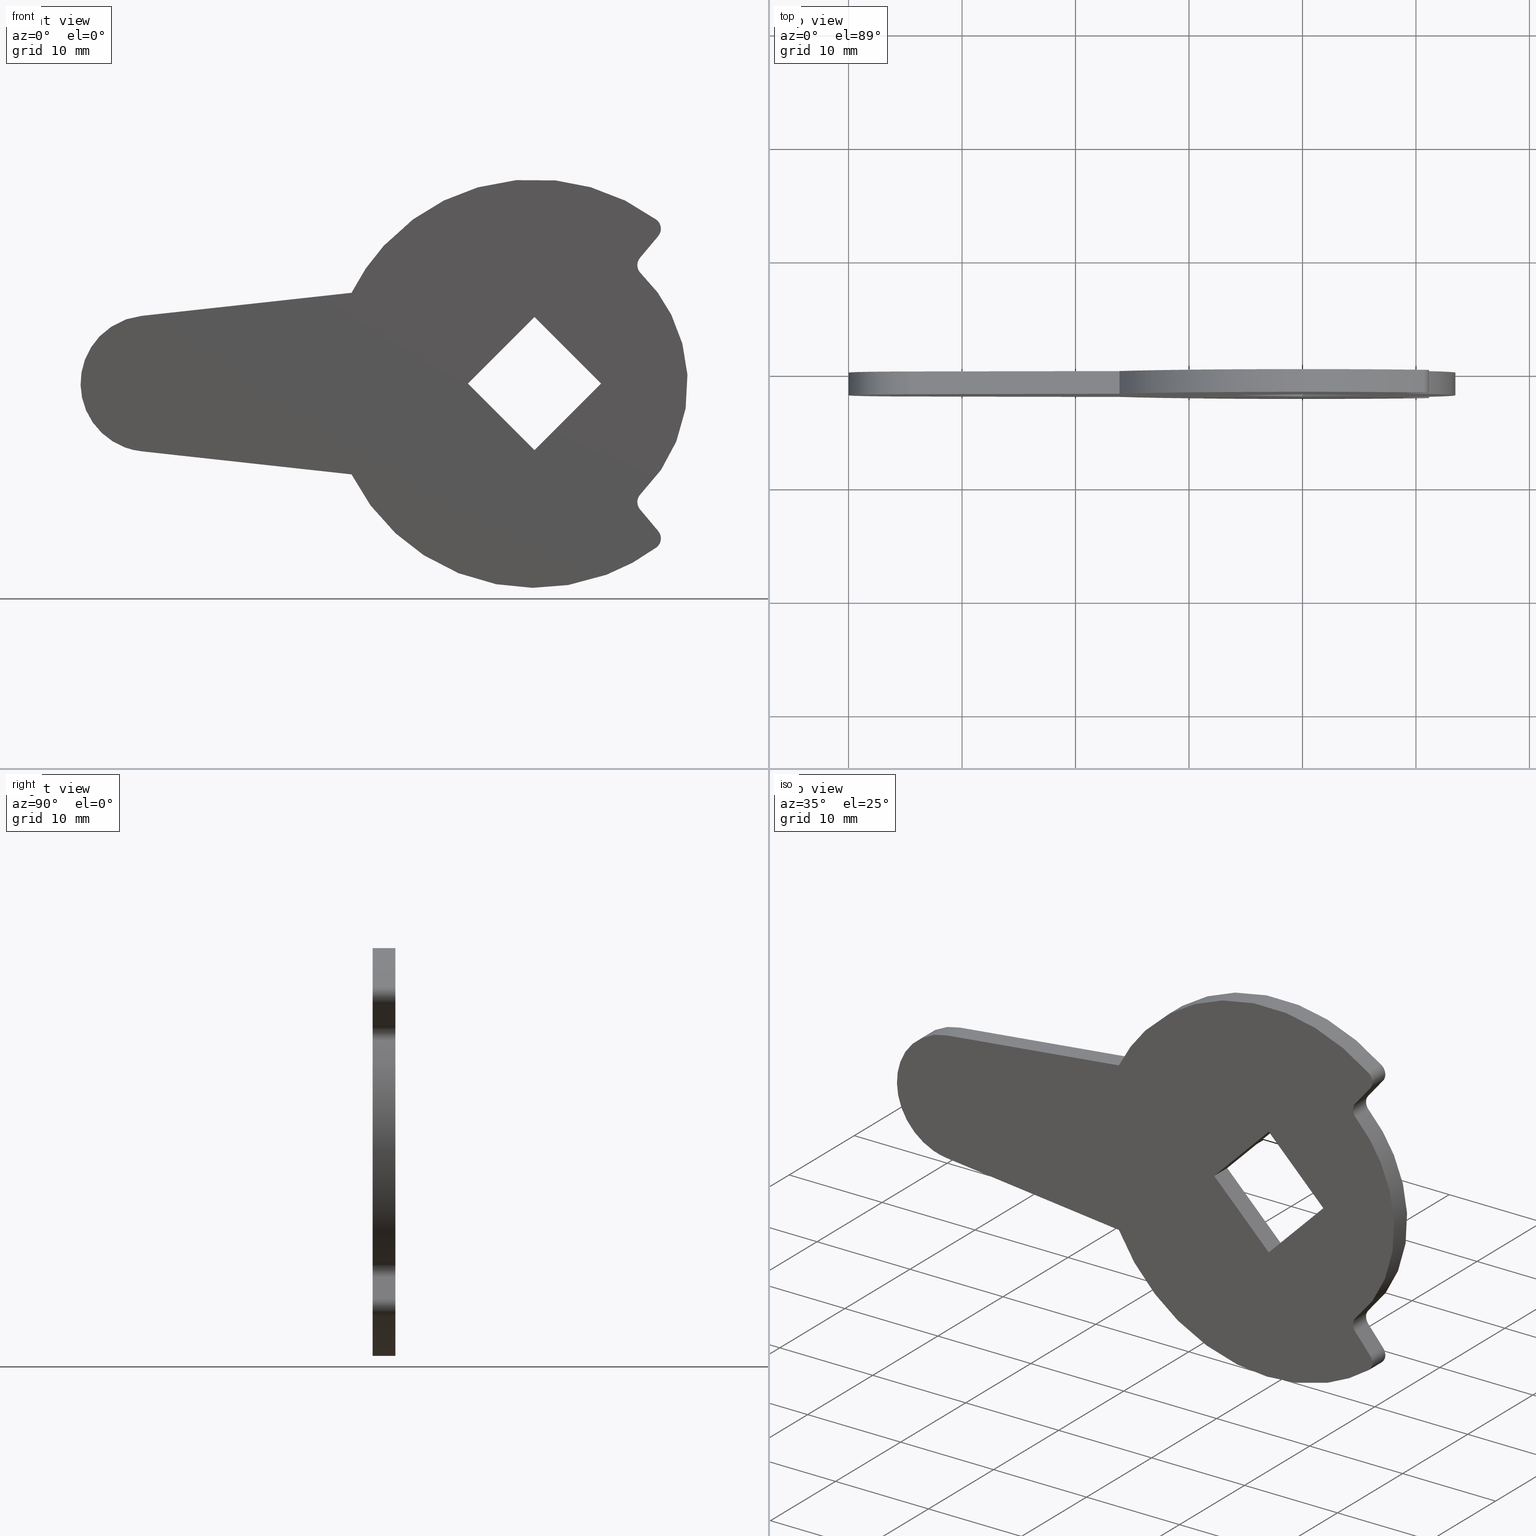
[diagram: canonical four-view strip — front | top / right | iso, engineering-drawing reading convention]
A machine part, canonical four-view strip (front | top / right | iso — engineering-drawing reading convention). The complete STEP part file that produces these views, byte-faithful:
ISO-10303-21;
HEADER;
/****************************************************************
 * Generated by software with PDE/Lib inside                    *
 * PDElib Version 4.4.1-0003, patched  Thursday August 19 11:58 *
 * International Technegroup Inc. (www.iti-oh.com)              *
 ****************************************************************/
FILE_DESCRIPTION((''),'2;1');
FILE_NAME('','2005-10-12T14:37:41',(''),(''),'','CADfix','');
FILE_SCHEMA(('AUTOMOTIVE_DESIGN'));
ENDSEC;
DATA;
#5=APPLICATION_CONTEXT('automotive design');
#6=APPLICATION_PROTOCOL_DEFINITION('Draft International Standard','automotive_design',1998,#5);
#7=PRODUCT_CONTEXT('None',#5,'mechanical');
#8=PRODUCT('cam','','None',(#7));
#9=PRODUCT_RELATED_PRODUCT_CATEGORY('part','description',(#8));
#10=PRODUCT_DEFINITION_FORMATION('None','None',#8);
#11=PRODUCT_DEFINITION_CONTEXT('part definition',#5,'design');
#12=PRODUCT_DEFINITION('None','None',#10,#11);
#18=(NAMED_UNIT(*)PLANE_ANGLE_UNIT()SI_UNIT($,.RADIAN.));
#19=DIMENSIONAL_EXPONENTS(0.0,0.0,0.0,0.0,0.0,0.0,0.0);
#20=PLANE_ANGLE_MEASURE_WITH_UNIT(PLANE_ANGLE_MEASURE(0.017453292500000),#18);
#24=(CONVERSION_BASED_UNIT('DEGREE',#20)NAMED_UNIT(#19)PLANE_ANGLE_UNIT());
#28=(NAMED_UNIT(*)SI_UNIT($,.STERADIAN.)SOLID_ANGLE_UNIT());
#32=(LENGTH_UNIT()NAMED_UNIT(*)SI_UNIT(.MILLI.,.METRE.));
#34=UNCERTAINTY_MEASURE_WITH_UNIT(LENGTH_MEASURE(0.001000000000000),#32,'DISTANCE_ACCURACY_VALUE','');
#36=(GEOMETRIC_REPRESENTATION_CONTEXT(3)GLOBAL_UNCERTAINTY_ASSIGNED_CONTEXT((#34))GLOBAL_UNIT_ASSIGNED_CONTEXT((#24,#28,#32))REPRESENTATION_CONTEXT('None','None'));
#37=AXIS2_PLACEMENT_3D('',#38,#39,#40);
#38=CARTESIAN_POINT('',(0.0,0.0,0.0));
#39=DIRECTION('',(0.0,0.0,1.0));
#40=DIRECTION('',(1.0,0.0,0.0));
#41=ADVANCED_BREP_SHAPE_REPRESENTATION('',(#37,#773),#36);
#42=PRODUCT_DEFINITION_SHAPE('','',#12);
#43=SHAPE_DEFINITION_REPRESENTATION(#42,#41);
#44=CARTESIAN_POINT('',(-42.672116572253323,0.0,19.798160962117120));
#45=CARTESIAN_POINT('',(16.172309228567340,0.0,19.798160962117120));
#46=CARTESIAN_POINT('',(-42.672116572253323,0.0,-19.798180562017890));
#47=CARTESIAN_POINT('',(16.172309228567340,0.0,-19.798180562017890));
#48=B_SPLINE_SURFACE_WITH_KNOTS('',1,1,((#44,#46),(#45,#47)),.UNSPECIFIED.,.F.,.F.,.U.,(2,2),(2,2),(0.0,58.844425800820659),(0.0,39.596341524135013),.UNSPECIFIED.);
#49=CARTESIAN_POINT('',(10.739072857427660,0.0,14.445526761286960));
#50=VERTEX_POINT('',#49);
#51=CARTESIAN_POINT('',(-16.124516390019298,0.0,7.999998199249760));
#52=VERTEX_POINT('',#51);
#53=CARTESIAN_POINT('',(10.739072857427670,0.0,14.445526761286979));
#54=CARTESIAN_POINT('',(3.984586888391954,0.0,19.466919151968000));
#55=CARTESIAN_POINT('',(-4.199630048120304,0.0,17.503235016676509));
#56=CARTESIAN_POINT('',(-12.383846984632562,0.0,15.539550881385031));
#57=CARTESIAN_POINT('',(-16.124516390019298,0.0,7.999998199249757));
#65=(BOUNDED_CURVE()B_SPLINE_CURVE(2,(#53,#54,#55,#56,#57),.UNSPECIFIED.,.F.,.U.)B_SPLINE_CURVE_WITH_KNOTS((3,2,3),(0.0,0.500000000000000,1.0),.UNSPECIFIED.)CURVE()GEOMETRIC_REPRESENTATION_ITEM()RATIONAL_B_SPLINE_CURVE((1.0,0.905864952288434,1.0,0.905864952288434,1.0))REPRESENTATION_ITEM(''));
#66=EDGE_CURVE('',#50,#52,#65,.T.);
#67=ORIENTED_EDGE('',*,*,#66,.F.);
#68=CARTESIAN_POINT('',(10.903888410533700,0.0,12.994704011808579));
#69=VERTEX_POINT('',#68);
#70=CARTESIAN_POINT('',(10.903888410533691,0.0,12.994704011808590));
#71=CARTESIAN_POINT('',(11.185033449869259,0.0,13.324930315200996));
#72=CARTESIAN_POINT('',(11.136079863433119,0.0,13.755854311945500));
#73=CARTESIAN_POINT('',(11.087126276996973,0.0,14.186778308690002));
#74=CARTESIAN_POINT('',(10.739072857427660,0.0,14.445526761286960));
#82=(BOUNDED_CURVE()B_SPLINE_CURVE(2,(#70,#71,#72,#73,#74),.UNSPECIFIED.,.F.,.U.)B_SPLINE_CURVE_WITH_KNOTS((3,2,3),(0.0,0.500000000000000,1.0),.UNSPECIFIED.)CURVE()GEOMETRIC_REPRESENTATION_ITEM()RATIONAL_B_SPLINE_CURVE((1.0,0.917438250668628,1.0,0.917438250668628,1.0))REPRESENTATION_ITEM(''));
#83=EDGE_CURVE('',#69,#50,#82,.T.);
#84=ORIENTED_EDGE('',*,*,#83,.F.);
#85=CARTESIAN_POINT('',(9.302911589465209,0.0,11.086695988190041));
#86=VERTEX_POINT('',#85);
#87=CARTESIAN_POINT('',(9.302911589465209,0.0,11.086695988190041));
#88=CARTESIAN_POINT('',(10.903888410533700,0.0,12.994704011808579));
#89=QUASI_UNIFORM_CURVE('',1,(#87,#88),.UNSPECIFIED.,.F.,.U.);
#90=EDGE_CURVE('',#86,#69,#89,.T.);
#91=ORIENTED_EDGE('',*,*,#90,.F.);
#92=CARTESIAN_POINT('',(9.370201414459581,0.0,9.718512161401019));
#93=VERTEX_POINT('',#92);
#94=CARTESIAN_POINT('',(9.302911589465223,0.0,11.086695988190030));
#95=CARTESIAN_POINT('',(8.693486324254092,0.0,10.370976687546957));
#96=CARTESIAN_POINT('',(9.370201414459581,0.0,9.718512161401019));
#104=(BOUNDED_CURVE()B_SPLINE_CURVE(2,(#94,#95,#96),.UNSPECIFIED.,.F.,.U.)CURVE()GEOMETRIC_REPRESENTATION_ITEM()QUASI_UNIFORM_CURVE()RATIONAL_B_SPLINE_CURVE((1.0,0.728615029616869,1.0))REPRESENTATION_ITEM(''));
#105=EDGE_CURVE('',#86,#93,#104,.T.);
#106=ORIENTED_EDGE('',*,*,#105,.T.);
#107=CARTESIAN_POINT('',(9.370232998813620,0.0,-9.718481708829620));
#108=VERTEX_POINT('',#107);
#109=CARTESIAN_POINT('',(9.370232998813620,0.0,-9.718481708829620));
#110=CARTESIAN_POINT('',(13.500002456554789,0.0,-5.736679563119537));
#111=CARTESIAN_POINT('',(13.499993134639389,0.0,0.000021937009817));
#112=CARTESIAN_POINT('',(13.499983812723983,0.0,5.736723437139174));
#113=CARTESIAN_POINT('',(9.370201414459583,0.0,9.718512161401019));
#121=(BOUNDED_CURVE()B_SPLINE_CURVE(2,(#109,#110,#111,#112,#113),.UNSPECIFIED.,.F.,.U.)B_SPLINE_CURVE_WITH_KNOTS((3,2,3),(0.0,0.500000000000000,1.0),.UNSPECIFIED.)CURVE()GEOMETRIC_REPRESENTATION_ITEM()RATIONAL_B_SPLINE_CURVE((1.0,0.920350869292249,1.0,0.920350869292249,1.0))REPRESENTATION_ITEM(''));
#122=EDGE_CURVE('',#108,#93,#121,.T.);
#123=ORIENTED_EDGE('',*,*,#122,.F.);
#124=CARTESIAN_POINT('',(9.302911589452830,0.0,-11.086695988175499));
#125=VERTEX_POINT('',#124);
#126=CARTESIAN_POINT('',(9.370232998813631,0.0,-9.718481708829630));
#127=CARTESIAN_POINT('',(8.693520258589841,0.0,-10.370948212983244));
#128=CARTESIAN_POINT('',(9.302911589452831,0.0,-11.086695988175499));
#136=(BOUNDED_CURVE()B_SPLINE_CURVE(2,(#126,#127,#128),.UNSPECIFIED.,.F.,.U.)CURVE()GEOMETRIC_REPRESENTATION_ITEM()QUASI_UNIFORM_CURVE()RATIONAL_B_SPLINE_CURVE((1.0,0.728632280260525,1.0))REPRESENTATION_ITEM(''));
#137=EDGE_CURVE('',#108,#125,#136,.T.);
#138=ORIENTED_EDGE('',*,*,#137,.T.);
#139=CARTESIAN_POINT('',(10.903888410541020,0.0,-12.994704011817319));
#140=VERTEX_POINT('',#139);
#141=CARTESIAN_POINT('',(10.903888410541020,0.0,-12.994704011817319));
#142=CARTESIAN_POINT('',(9.302911589452830,0.0,-11.086695988175499));
#143=QUASI_UNIFORM_CURVE('',1,(#141,#142),.UNSPECIFIED.,.F.,.U.);
#144=EDGE_CURVE('',#140,#125,#143,.T.);
#145=ORIENTED_EDGE('',*,*,#144,.F.);
#146=CARTESIAN_POINT('',(10.739112776660720,0.0,-14.445497084531439));
#147=VERTEX_POINT('',#146);
#148=CARTESIAN_POINT('',(10.739112776660720,0.0,-14.445497084531430));
#149=CARTESIAN_POINT('',(11.087159702480234,0.0,-14.186750629947127));
#150=CARTESIAN_POINT('',(11.136101848851300,0.0,-13.755831778374180));
#151=CARTESIAN_POINT('',(11.185043995222372,0.0,-13.324912926801224));
#152=CARTESIAN_POINT('',(10.903888410541020,0.0,-12.994704011817319));
#160=(BOUNDED_CURVE()B_SPLINE_CURVE(2,(#148,#149,#150,#151,#152),.UNSPECIFIED.,.F.,.U.)B_SPLINE_CURVE_WITH_KNOTS((3,2,3),(0.0,0.500000000000000,1.0),.UNSPECIFIED.)CURVE()GEOMETRIC_REPRESENTATION_ITEM()RATIONAL_B_SPLINE_CURVE((1.0,0.917434344496949,1.0,0.917434344496949,1.0))REPRESENTATION_ITEM(''));
#161=EDGE_CURVE('',#147,#140,#160,.T.);
#162=ORIENTED_EDGE('',*,*,#161,.F.);
#163=CARTESIAN_POINT('',(-16.124516390019249,0.0,-7.999998199249870));
#164=VERTEX_POINT('',#163);
#165=CARTESIAN_POINT('',(-16.124516390019220,0.0,-7.999998199249855));
#166=CARTESIAN_POINT('',(-12.383854566696790,0.0,-15.539582422374766));
#167=CARTESIAN_POINT('',(-4.199610718877521,0.0,-17.503261055320671));
#168=CARTESIAN_POINT('',(3.984633128941750,0.0,-19.466939688266574));
#169=CARTESIAN_POINT('',(10.739112776660701,0.0,-14.445497084531430));
#177=(BOUNDED_CURVE()B_SPLINE_CURVE(2,(#165,#166,#167,#168,#169),.UNSPECIFIED.,.F.,.U.)B_SPLINE_CURVE_WITH_KNOTS((3,2,3),(0.0,0.500000000000000,1.0),.UNSPECIFIED.)CURVE()GEOMETRIC_REPRESENTATION_ITEM()RATIONAL_B_SPLINE_CURVE((1.0,0.905864136016763,1.0,0.905864136016763,1.0))REPRESENTATION_ITEM(''));
#178=EDGE_CURVE('',#164,#147,#177,.T.);
#179=ORIENTED_EDGE('',*,*,#178,.F.);
#180=CARTESIAN_POINT('',(-34.633145301704651,0.0,-5.966479173583750));
#181=VERTEX_POINT('',#180);
#182=CARTESIAN_POINT('',(-34.633145301704651,0.0,-5.966479173583750));
#183=CARTESIAN_POINT('',(-16.124516390019249,0.0,-7.999998199249870));
#184=QUASI_UNIFORM_CURVE('',1,(#182,#183),.UNSPECIFIED.,.F.,.U.);
#185=EDGE_CURVE('',#181,#164,#184,.T.);
#186=ORIENTED_EDGE('',*,*,#185,.F.);
#187=CARTESIAN_POINT('',(-34.633145301685097,0.0,5.966479173585831));
#188=VERTEX_POINT('',#187);
#189=CARTESIAN_POINT('',(-34.633145301685097,0.0,5.966479173585825));
#190=CARTESIAN_POINT('',(-39.999799999991154,0.0,5.396805595575883));
#191=CARTESIAN_POINT('',(-39.999799999999993,0.0,9.828506E-012));
#192=CARTESIAN_POINT('',(-39.999800000008840,0.0,-5.396805595556225));
#193=CARTESIAN_POINT('',(-34.633145301704651,0.0,-5.966479173583751));
#201=(BOUNDED_CURVE()B_SPLINE_CURVE(2,(#189,#190,#191,#192,#193),.UNSPECIFIED.,.F.,.U.)B_SPLINE_CURVE_WITH_KNOTS((3,2,3),(0.0,0.500000000000000,1.0),.UNSPECIFIED.)CURVE()GEOMETRIC_REPRESENTATION_ITEM()RATIONAL_B_SPLINE_CURVE((1.0,0.743490938170224,1.0,0.743490938170224,1.0))REPRESENTATION_ITEM(''));
#202=EDGE_CURVE('',#188,#181,#201,.T.);
#203=ORIENTED_EDGE('',*,*,#202,.F.);
#204=CARTESIAN_POINT('',(-16.124516390019298,0.0,7.999998199249760));
#205=CARTESIAN_POINT('',(-34.633145301685097,0.0,5.966479173585831));
#206=QUASI_UNIFORM_CURVE('',1,(#204,#205),.UNSPECIFIED.,.F.,.U.);
#207=EDGE_CURVE('',#52,#188,#206,.T.);
#208=ORIENTED_EDGE('',*,*,#207,.F.);
#209=EDGE_LOOP('',(#67,#84,#91,#106,#123,#138,#145,#162,#179,#186,#203,#208));
#210=FACE_OUTER_BOUND('',#209,.T.);
#211=CARTESIAN_POINT('',(0.000100000000018,0.0,5.868999999999900));
#212=VERTEX_POINT('',#211);
#213=CARTESIAN_POINT('',(-5.868900000000000,0.0,0.0));
#214=VERTEX_POINT('',#213);
#215=CARTESIAN_POINT('',(0.000100000000018,0.0,5.868999999999900));
#216=CARTESIAN_POINT('',(-5.868900000000000,0.0,0.0));
#217=QUASI_UNIFORM_CURVE('',1,(#215,#216),.UNSPECIFIED.,.F.,.U.);
#218=EDGE_CURVE('',#212,#214,#217,.T.);
#219=ORIENTED_EDGE('',*,*,#218,.T.);
#220=CARTESIAN_POINT('',(0.000100000000018,0.0,-5.869000000000000));
#221=VERTEX_POINT('',#220);
#222=CARTESIAN_POINT('',(-5.868900000000000,0.0,0.0));
#223=CARTESIAN_POINT('',(0.000100000000018,0.0,-5.869000000000000));
#224=QUASI_UNIFORM_CURVE('',1,(#222,#223),.UNSPECIFIED.,.F.,.U.);
#225=EDGE_CURVE('',#214,#221,#224,.T.);
#226=ORIENTED_EDGE('',*,*,#225,.T.);
#227=CARTESIAN_POINT('',(5.869000000000000,0.0,0.0));
#228=VERTEX_POINT('',#227);
#229=CARTESIAN_POINT('',(0.000100000000018,0.0,-5.869000000000000));
#230=CARTESIAN_POINT('',(5.869000000000000,0.0,0.0));
#231=QUASI_UNIFORM_CURVE('',1,(#229,#230),.UNSPECIFIED.,.F.,.U.);
#232=EDGE_CURVE('',#221,#228,#231,.T.);
#233=ORIENTED_EDGE('',*,*,#232,.T.);
#234=CARTESIAN_POINT('',(5.869000000000000,0.0,0.0));
#235=CARTESIAN_POINT('',(0.000100000000018,0.0,5.868999999999900));
#236=QUASI_UNIFORM_CURVE('',1,(#234,#235),.UNSPECIFIED.,.F.,.U.);
#237=EDGE_CURVE('',#228,#212,#236,.T.);
#238=ORIENTED_EDGE('',*,*,#237,.T.);
#239=EDGE_LOOP('',(#219,#226,#233,#238));
#240=FACE_BOUND('',#239,.T.);
#241=ADVANCED_FACE('',(#210,#240),#48,.T.);
#242=CARTESIAN_POINT('',(-42.672116572253323,-2.0,19.798160962117120));
#243=CARTESIAN_POINT('',(16.172309228567340,-2.0,19.798160962117120));
#244=CARTESIAN_POINT('',(-42.672116572253323,-2.0,-19.798180562017890));
#245=CARTESIAN_POINT('',(16.172309228567340,-2.0,-19.798180562017890));
#246=B_SPLINE_SURFACE_WITH_KNOTS('',1,1,((#242,#244),(#243,#245)),.UNSPECIFIED.,.F.,.F.,.U.,(2,2),(2,2),(0.0,58.844425800820659),(0.0,39.596341524135013),.UNSPECIFIED.);
#247=CARTESIAN_POINT('',(10.739072857427660,-2.0,14.445526761286960));
#248=VERTEX_POINT('',#247);
#249=CARTESIAN_POINT('',(-16.124516390019298,-2.0,7.999998199249760));
#250=VERTEX_POINT('',#249);
#251=CARTESIAN_POINT('',(10.739072857427670,-2.0,14.445526761286979));
#252=CARTESIAN_POINT('',(3.984586888391954,-2.000000000000000,19.466919151968000));
#253=CARTESIAN_POINT('',(-4.199630048120304,-2.0,17.503235016676509));
#254=CARTESIAN_POINT('',(-12.383846984632562,-2.000000000000000,15.539550881385031));
#255=CARTESIAN_POINT('',(-16.124516390019298,-2.0,7.999998199249757));
#263=(BOUNDED_CURVE()B_SPLINE_CURVE(2,(#251,#252,#253,#254,#255),.UNSPECIFIED.,.F.,.U.)B_SPLINE_CURVE_WITH_KNOTS((3,2,3),(0.0,0.500000000000000,1.0),.UNSPECIFIED.)CURVE()GEOMETRIC_REPRESENTATION_ITEM()RATIONAL_B_SPLINE_CURVE((1.0,0.905864952288434,1.0,0.905864952288434,1.0))REPRESENTATION_ITEM(''));
#264=EDGE_CURVE('',#248,#250,#263,.T.);
#265=ORIENTED_EDGE('',*,*,#264,.T.);
#266=CARTESIAN_POINT('',(-34.633145301685097,-2.0,5.966479173585831));
#267=VERTEX_POINT('',#266);
#268=CARTESIAN_POINT('',(-16.124516390019298,-2.0,7.999998199249760));
#269=CARTESIAN_POINT('',(-34.633145301685097,-2.0,5.966479173585831));
#270=QUASI_UNIFORM_CURVE('',1,(#268,#269),.UNSPECIFIED.,.F.,.U.);
#271=EDGE_CURVE('',#250,#267,#270,.T.);
#272=ORIENTED_EDGE('',*,*,#271,.T.);
#273=CARTESIAN_POINT('',(-34.633145301704651,-2.0,-5.966479173583750));
#274=VERTEX_POINT('',#273);
#275=CARTESIAN_POINT('',(-34.633145301685097,-2.0,5.966479173585825));
#276=CARTESIAN_POINT('',(-39.999799999991154,-2.0,5.396805595575883));
#277=CARTESIAN_POINT('',(-39.999799999999993,-2.0,9.828506E-012));
#278=CARTESIAN_POINT('',(-39.999800000008840,-2.0,-5.396805595556225));
#279=CARTESIAN_POINT('',(-34.633145301704651,-2.0,-5.966479173583751));
#287=(BOUNDED_CURVE()B_SPLINE_CURVE(2,(#275,#276,#277,#278,#279),.UNSPECIFIED.,.F.,.U.)B_SPLINE_CURVE_WITH_KNOTS((3,2,3),(0.0,0.500000000000000,1.0),.UNSPECIFIED.)CURVE()GEOMETRIC_REPRESENTATION_ITEM()RATIONAL_B_SPLINE_CURVE((1.0,0.743490938170224,1.0,0.743490938170224,1.0))REPRESENTATION_ITEM(''));
#288=EDGE_CURVE('',#267,#274,#287,.T.);
#289=ORIENTED_EDGE('',*,*,#288,.T.);
#290=CARTESIAN_POINT('',(-16.124516390019249,-2.0,-7.999998199249870));
#291=VERTEX_POINT('',#290);
#292=CARTESIAN_POINT('',(-34.633145301704651,-2.0,-5.966479173583750));
#293=CARTESIAN_POINT('',(-16.124516390019249,-2.0,-7.999998199249870));
#294=QUASI_UNIFORM_CURVE('',1,(#292,#293),.UNSPECIFIED.,.F.,.U.);
#295=EDGE_CURVE('',#274,#291,#294,.T.);
#296=ORIENTED_EDGE('',*,*,#295,.T.);
#297=CARTESIAN_POINT('',(10.739112776660720,-2.0,-14.445497084531439));
#298=VERTEX_POINT('',#297);
#299=CARTESIAN_POINT('',(-16.124516390019220,-2.0,-7.999998199249855));
#300=CARTESIAN_POINT('',(-12.383854566696790,-2.000000000000000,-15.539582422374766));
#301=CARTESIAN_POINT('',(-4.199610718877521,-2.0,-17.503261055320671));
#302=CARTESIAN_POINT('',(3.984633128941750,-2.000000000000000,-19.466939688266574));
#303=CARTESIAN_POINT('',(10.739112776660701,-2.0,-14.445497084531430));
#311=(BOUNDED_CURVE()B_SPLINE_CURVE(2,(#299,#300,#301,#302,#303),.UNSPECIFIED.,.F.,.U.)B_SPLINE_CURVE_WITH_KNOTS((3,2,3),(0.0,0.500000000000000,1.0),.UNSPECIFIED.)CURVE()GEOMETRIC_REPRESENTATION_ITEM()RATIONAL_B_SPLINE_CURVE((1.0,0.905864136016763,1.0,0.905864136016763,1.0))REPRESENTATION_ITEM(''));
#312=EDGE_CURVE('',#291,#298,#311,.T.);
#313=ORIENTED_EDGE('',*,*,#312,.T.);
#314=CARTESIAN_POINT('',(10.903888410541020,-2.0,-12.994704011817319));
#315=VERTEX_POINT('',#314);
#316=CARTESIAN_POINT('',(10.739112776660720,-2.0,-14.445497084531430));
#317=CARTESIAN_POINT('',(11.087159702480234,-2.000000000000000,-14.186750629947127));
#318=CARTESIAN_POINT('',(11.136101848851300,-2.0,-13.755831778374180));
#319=CARTESIAN_POINT('',(11.185043995222372,-2.000000000000000,-13.324912926801224));
#320=CARTESIAN_POINT('',(10.903888410541020,-2.0,-12.994704011817319));
#328=(BOUNDED_CURVE()B_SPLINE_CURVE(2,(#316,#317,#318,#319,#320),.UNSPECIFIED.,.F.,.U.)B_SPLINE_CURVE_WITH_KNOTS((3,2,3),(0.0,0.500000000000000,1.0),.UNSPECIFIED.)CURVE()GEOMETRIC_REPRESENTATION_ITEM()RATIONAL_B_SPLINE_CURVE((1.0,0.917434344496949,1.0,0.917434344496949,1.0))REPRESENTATION_ITEM(''));
#329=EDGE_CURVE('',#298,#315,#328,.T.);
#330=ORIENTED_EDGE('',*,*,#329,.T.);
#331=CARTESIAN_POINT('',(9.302911589452830,-2.0,-11.086695988175499));
#332=VERTEX_POINT('',#331);
#333=CARTESIAN_POINT('',(10.903888410541020,-2.0,-12.994704011817319));
#334=CARTESIAN_POINT('',(9.302911589452830,-2.0,-11.086695988175499));
#335=QUASI_UNIFORM_CURVE('',1,(#333,#334),.UNSPECIFIED.,.F.,.U.);
#336=EDGE_CURVE('',#315,#332,#335,.T.);
#337=ORIENTED_EDGE('',*,*,#336,.T.);
#338=CARTESIAN_POINT('',(9.370232998813620,-2.0,-9.718481708829620));
#339=VERTEX_POINT('',#338);
#340=CARTESIAN_POINT('',(9.370232998813631,-2.0,-9.718481708829630));
#341=CARTESIAN_POINT('',(8.693520258589841,-2.000000000000000,-10.370948212983244));
#342=CARTESIAN_POINT('',(9.302911589452831,-2.0,-11.086695988175499));
#350=(BOUNDED_CURVE()B_SPLINE_CURVE(2,(#340,#341,#342),.UNSPECIFIED.,.F.,.U.)CURVE()GEOMETRIC_REPRESENTATION_ITEM()QUASI_UNIFORM_CURVE()RATIONAL_B_SPLINE_CURVE((1.0,0.728632280260525,1.0))REPRESENTATION_ITEM(''));
#351=EDGE_CURVE('',#339,#332,#350,.T.);
#352=ORIENTED_EDGE('',*,*,#351,.F.);
#353=CARTESIAN_POINT('',(9.370201414459581,-2.0,9.718512161401019));
#354=VERTEX_POINT('',#353);
#355=CARTESIAN_POINT('',(9.370232998813620,-2.0,-9.718481708829620));
#356=CARTESIAN_POINT('',(13.500002456554789,-2.000000000000000,-5.736679563119537));
#357=CARTESIAN_POINT('',(13.499993134639389,-2.0,0.000021937009817));
#358=CARTESIAN_POINT('',(13.499983812723983,-2.000000000000000,5.736723437139174));
#359=CARTESIAN_POINT('',(9.370201414459583,-2.0,9.718512161401019));
#367=(BOUNDED_CURVE()B_SPLINE_CURVE(2,(#355,#356,#357,#358,#359),.UNSPECIFIED.,.F.,.U.)B_SPLINE_CURVE_WITH_KNOTS((3,2,3),(0.0,0.500000000000000,1.0),.UNSPECIFIED.)CURVE()GEOMETRIC_REPRESENTATION_ITEM()RATIONAL_B_SPLINE_CURVE((1.0,0.920350869292249,1.0,0.920350869292249,1.0))REPRESENTATION_ITEM(''));
#368=EDGE_CURVE('',#339,#354,#367,.T.);
#369=ORIENTED_EDGE('',*,*,#368,.T.);
#370=CARTESIAN_POINT('',(9.302911589465209,-2.0,11.086695988190041));
#371=VERTEX_POINT('',#370);
#372=CARTESIAN_POINT('',(9.302911589465223,-2.0,11.086695988190030));
#373=CARTESIAN_POINT('',(8.693486324254092,-2.000000000000000,10.370976687546957));
#374=CARTESIAN_POINT('',(9.370201414459581,-2.0,9.718512161401019));
#382=(BOUNDED_CURVE()B_SPLINE_CURVE(2,(#372,#373,#374),.UNSPECIFIED.,.F.,.U.)CURVE()GEOMETRIC_REPRESENTATION_ITEM()QUASI_UNIFORM_CURVE()RATIONAL_B_SPLINE_CURVE((1.0,0.728615029616869,1.0))REPRESENTATION_ITEM(''));
#383=EDGE_CURVE('',#371,#354,#382,.T.);
#384=ORIENTED_EDGE('',*,*,#383,.F.);
#385=CARTESIAN_POINT('',(10.903888410533700,-2.0,12.994704011808579));
#386=VERTEX_POINT('',#385);
#387=CARTESIAN_POINT('',(9.302911589465209,-2.0,11.086695988190041));
#388=CARTESIAN_POINT('',(10.903888410533700,-2.0,12.994704011808579));
#389=QUASI_UNIFORM_CURVE('',1,(#387,#388),.UNSPECIFIED.,.F.,.U.);
#390=EDGE_CURVE('',#371,#386,#389,.T.);
#391=ORIENTED_EDGE('',*,*,#390,.T.);
#392=CARTESIAN_POINT('',(10.903888410533691,-2.0,12.994704011808590));
#393=CARTESIAN_POINT('',(11.185033449869259,-2.000000000000000,13.324930315200996));
#394=CARTESIAN_POINT('',(11.136079863433119,-2.0,13.755854311945500));
#395=CARTESIAN_POINT('',(11.087126276996973,-2.000000000000000,14.186778308690002));
#396=CARTESIAN_POINT('',(10.739072857427660,-2.0,14.445526761286960));
#404=(BOUNDED_CURVE()B_SPLINE_CURVE(2,(#392,#393,#394,#395,#396),.UNSPECIFIED.,.F.,.U.)B_SPLINE_CURVE_WITH_KNOTS((3,2,3),(0.0,0.500000000000000,1.0),.UNSPECIFIED.)CURVE()GEOMETRIC_REPRESENTATION_ITEM()RATIONAL_B_SPLINE_CURVE((1.0,0.917438250668628,1.0,0.917438250668628,1.0))REPRESENTATION_ITEM(''));
#405=EDGE_CURVE('',#386,#248,#404,.T.);
#406=ORIENTED_EDGE('',*,*,#405,.T.);
#407=EDGE_LOOP('',(#265,#272,#289,#296,#313,#330,#337,#352,#369,#384,#391,#406));
#408=FACE_OUTER_BOUND('',#407,.T.);
#409=CARTESIAN_POINT('',(0.000100000000018,-2.0,5.868999999999900));
#410=VERTEX_POINT('',#409);
#411=CARTESIAN_POINT('',(-5.868900000000000,-2.0,0.0));
#412=VERTEX_POINT('',#411);
#413=CARTESIAN_POINT('',(0.000100000000018,-2.0,5.868999999999900));
#414=CARTESIAN_POINT('',(-5.868900000000000,-2.0,0.0));
#415=QUASI_UNIFORM_CURVE('',1,(#413,#414),.UNSPECIFIED.,.F.,.U.);
#416=EDGE_CURVE('',#410,#412,#415,.T.);
#417=ORIENTED_EDGE('',*,*,#416,.F.);
#418=CARTESIAN_POINT('',(5.869000000000000,-2.0,0.0));
#419=VERTEX_POINT('',#418);
#420=CARTESIAN_POINT('',(5.869000000000000,-2.0,0.0));
#421=CARTESIAN_POINT('',(0.000100000000018,-2.0,5.868999999999900));
#422=QUASI_UNIFORM_CURVE('',1,(#420,#421),.UNSPECIFIED.,.F.,.U.);
#423=EDGE_CURVE('',#419,#410,#422,.T.);
#424=ORIENTED_EDGE('',*,*,#423,.F.);
#425=CARTESIAN_POINT('',(0.000100000000018,-2.0,-5.869000000000000));
#426=VERTEX_POINT('',#425);
#427=CARTESIAN_POINT('',(0.000100000000018,-2.0,-5.869000000000000));
#428=CARTESIAN_POINT('',(5.869000000000000,-2.0,0.0));
#429=QUASI_UNIFORM_CURVE('',1,(#427,#428),.UNSPECIFIED.,.F.,.U.);
#430=EDGE_CURVE('',#426,#419,#429,.T.);
#431=ORIENTED_EDGE('',*,*,#430,.F.);
#432=CARTESIAN_POINT('',(-5.868900000000000,-2.0,0.0));
#433=CARTESIAN_POINT('',(0.000100000000018,-2.0,-5.869000000000000));
#434=QUASI_UNIFORM_CURVE('',1,(#432,#433),.UNSPECIFIED.,.F.,.U.);
#435=EDGE_CURVE('',#412,#426,#434,.T.);
#436=ORIENTED_EDGE('',*,*,#435,.F.);
#437=EDGE_LOOP('',(#417,#424,#431,#436));
#438=FACE_BOUND('',#437,.T.);
#439=ADVANCED_FACE('',(#408,#438),#246,.F.);
#440=CARTESIAN_POINT('',(10.884115499886709,-2.050000000000000,12.972172327388000));
#441=CARTESIAN_POINT('',(10.884115499886709,0.051250000000000,12.972172327388000));
#442=CARTESIAN_POINT('',(11.678704196290745,-2.049999999999999,13.850706852033175));
#443=CARTESIAN_POINT('',(11.678704196290745,0.051250000000000,13.850706852033175));
#444=CARTESIAN_POINT('',(10.679328024175499,-2.050000000000000,14.486663905657778));
#445=CARTESIAN_POINT('',(10.679328024175499,0.051250000000000,14.486663905657778));
#453=(BOUNDED_SURFACE()B_SPLINE_SURFACE(1,2,((#440,#442,#444),(#441,#443,#445)),.UNSPECIFIED.,.F.,.F.,.U.)B_SPLINE_SURFACE_WITH_KNOTS((2,2),(3,3),(0.0,2.101250000000000),(0.0,0.996096896117646),.UNSPECIFIED.)GEOMETRIC_REPRESENTATION_ITEM()RATIONAL_B_SPLINE_SURFACE(((1.0,0.644181846753997,0.997222409569307),(1.0,0.644181846753997,0.997222409569307)))REPRESENTATION_ITEM('')SURFACE());
#454=ORIENTED_EDGE('',*,*,#83,.T.);
#455=CARTESIAN_POINT('',(10.739072857427660,-2.0,14.445526761286960));
#456=CARTESIAN_POINT('',(10.739072857427660,0.0,14.445526761286960));
#457=QUASI_UNIFORM_CURVE('',1,(#455,#456),.UNSPECIFIED.,.F.,.U.);
#458=EDGE_CURVE('',#248,#50,#457,.T.);
#459=ORIENTED_EDGE('',*,*,#458,.F.);
#460=ORIENTED_EDGE('',*,*,#405,.F.);
#461=CARTESIAN_POINT('',(10.903888410533700,-2.0,12.994704011808579));
#462=CARTESIAN_POINT('',(10.903888410533700,0.0,12.994704011808579));
#463=QUASI_UNIFORM_CURVE('',1,(#461,#462),.UNSPECIFIED.,.F.,.U.);
#464=EDGE_CURVE('',#386,#69,#463,.T.);
#465=ORIENTED_EDGE('',*,*,#464,.T.);
#466=EDGE_LOOP('',(#454,#459,#460,#465));
#467=FACE_OUTER_BOUND('',#466,.T.);
#468=ADVANCED_FACE('',(#467),#453,.T.);
#469=CARTESIAN_POINT('',(-6.162056483530767,-2.099899996123612,0.293156483530768));
#470=CARTESIAN_POINT('',(0.293256693422571,-2.099899996123612,-6.162156693422571));
#471=CARTESIAN_POINT('',(-6.162056483530767,0.099900049767792,0.293156483530768));
#472=CARTESIAN_POINT('',(0.293256693422571,0.099900049767792,-6.162156693422571));
#473=B_SPLINE_SURFACE_WITH_KNOTS('',1,1,((#469,#471),(#470,#472)),.UNSPECIFIED.,.F.,.F.,.U.,(2,2),(2,2),(0.0,9.129191444213163),(0.0,2.199800045891404),.UNSPECIFIED.);
#474=ORIENTED_EDGE('',*,*,#225,.F.);
#475=CARTESIAN_POINT('',(-5.868900000000000,-2.0,0.0));
#476=CARTESIAN_POINT('',(-5.868900000000000,0.0,0.0));
#477=QUASI_UNIFORM_CURVE('',1,(#475,#476),.UNSPECIFIED.,.F.,.U.);
#478=EDGE_CURVE('',#412,#214,#477,.T.);
#479=ORIENTED_EDGE('',*,*,#478,.F.);
#480=ORIENTED_EDGE('',*,*,#435,.T.);
#481=CARTESIAN_POINT('',(0.000100000000018,-2.0,-5.869000000000000));
#482=CARTESIAN_POINT('',(0.000100000000018,0.0,-5.869000000000000));
#483=QUASI_UNIFORM_CURVE('',1,(#481,#482),.UNSPECIFIED.,.F.,.U.);
#484=EDGE_CURVE('',#426,#221,#483,.T.);
#485=ORIENTED_EDGE('',*,*,#484,.T.);
#486=EDGE_LOOP('',(#474,#479,#480,#485));
#487=FACE_OUTER_BOUND('',#486,.T.);
#488=ADVANCED_FACE('',(#487),#473,.T.);
#489=CARTESIAN_POINT('',(-0.293051543624914,-2.099899996123612,-6.162156538624739));
#490=CARTESIAN_POINT('',(6.162151701041095,-2.099899996123612,0.293156696043587));
#491=CARTESIAN_POINT('',(-0.293051543624914,0.099900049767792,-6.162156538624739));
#492=CARTESIAN_POINT('',(6.162151701041095,0.099900049767792,0.293156696043587));
#493=B_SPLINE_SURFACE_WITH_KNOTS('',1,1,((#489,#491),(#490,#492)),.UNSPECIFIED.,.F.,.F.,.U.,(2,2),(2,2),(0.0,9.129113751489278),(0.0,2.199800045891404),.UNSPECIFIED.);
#494=ORIENTED_EDGE('',*,*,#232,.F.);
#495=ORIENTED_EDGE('',*,*,#484,.F.);
#496=ORIENTED_EDGE('',*,*,#430,.T.);
#497=CARTESIAN_POINT('',(5.869000000000000,-2.0,0.0));
#498=CARTESIAN_POINT('',(5.869000000000000,0.0,0.0));
#499=QUASI_UNIFORM_CURVE('',1,(#497,#498),.UNSPECIFIED.,.F.,.U.);
#500=EDGE_CURVE('',#419,#228,#499,.T.);
#501=ORIENTED_EDGE('',*,*,#500,.T.);
#502=EDGE_LOOP('',(#494,#495,#496,#501));
#503=FACE_OUTER_BOUND('',#502,.T.);
#504=ADVANCED_FACE('',(#503),#493,.T.);
#505=CARTESIAN_POINT('',(6.162151543624931,-2.099899996123611,-0.293156538624735));
#506=CARTESIAN_POINT('',(-0.293051701041079,-2.099899996123611,6.162156696043485));
#507=CARTESIAN_POINT('',(6.162151543624931,0.099900049767792,-0.293156538624735));
#508=CARTESIAN_POINT('',(-0.293051701041079,0.099900049767792,6.162156696043485));
#509=B_SPLINE_SURFACE_WITH_KNOTS('',1,1,((#505,#507),(#506,#508)),.UNSPECIFIED.,.F.,.F.,.U.,(2,2),(2,2),(0.0,9.129113751489200),(0.0,2.199800045891403),.UNSPECIFIED.);
#510=ORIENTED_EDGE('',*,*,#237,.F.);
#511=ORIENTED_EDGE('',*,*,#500,.F.);
#512=ORIENTED_EDGE('',*,*,#423,.T.);
#513=CARTESIAN_POINT('',(0.000100000000018,-2.0,5.868999999999900));
#514=CARTESIAN_POINT('',(0.000100000000018,0.0,5.868999999999900));
#515=QUASI_UNIFORM_CURVE('',1,(#513,#514),.UNSPECIFIED.,.F.,.U.);
#516=EDGE_CURVE('',#410,#212,#515,.T.);
#517=ORIENTED_EDGE('',*,*,#516,.T.);
#518=EDGE_LOOP('',(#510,#511,#512,#517));
#519=FACE_OUTER_BOUND('',#518,.T.);
#520=ADVANCED_FACE('',(#519),#509,.T.);
#521=CARTESIAN_POINT('',(0.293256517656567,-2.099899996123612,6.162156517656445));
#522=CARTESIAN_POINT('',(-6.162056255291796,-2.099899996123612,-0.293156255291809));
#523=CARTESIAN_POINT('',(0.293256517656567,0.099900049767792,6.162156517656445));
#524=CARTESIAN_POINT('',(-6.162056255291796,0.099900049767792,-0.293156255291809));
#525=B_SPLINE_SURFACE_WITH_KNOTS('',1,1,((#521,#523),(#522,#524)),.UNSPECIFIED.,.F.,.F.,.U.,(2,2),(2,2),(0.0,9.129190872863770),(0.0,2.199800045891404),.UNSPECIFIED.);
#526=ORIENTED_EDGE('',*,*,#218,.F.);
#527=ORIENTED_EDGE('',*,*,#516,.F.);
#528=ORIENTED_EDGE('',*,*,#416,.T.);
#529=ORIENTED_EDGE('',*,*,#478,.T.);
#530=EDGE_LOOP('',(#526,#527,#528,#529));
#531=FACE_OUTER_BOUND('',#530,.T.);
#532=ADVANCED_FACE('',(#531),#525,.T.);
#533=CARTESIAN_POINT('',(9.222942698743262,-2.099899996123612,10.991390870008811));
#534=CARTESIAN_POINT('',(10.983857487335669,-2.099899996123612,13.090009351755789));
#535=CARTESIAN_POINT('',(9.222942698743262,0.099900049767792,10.991390870008811));
#536=CARTESIAN_POINT('',(10.983857487335669,0.099900049767792,13.090009351755789));
#537=B_SPLINE_SURFACE_WITH_KNOTS('',1,1,((#533,#535),(#534,#536)),.UNSPECIFIED.,.F.,.F.,.U.,(2,2),(2,2),(0.0,2.739529234122796),(0.0,2.199800045891404),.UNSPECIFIED.);
#538=ORIENTED_EDGE('',*,*,#90,.T.);
#539=ORIENTED_EDGE('',*,*,#464,.F.);
#540=ORIENTED_EDGE('',*,*,#390,.F.);
#541=CARTESIAN_POINT('',(9.302911589465209,-2.0,11.086695988190041));
#542=CARTESIAN_POINT('',(9.302911589465209,0.0,11.086695988190041));
#543=QUASI_UNIFORM_CURVE('',1,(#541,#542),.UNSPECIFIED.,.F.,.U.);
#544=EDGE_CURVE('',#371,#86,#543,.T.);
#545=ORIENTED_EDGE('',*,*,#544,.T.);
#546=EDGE_LOOP('',(#538,#539,#540,#545));
#547=FACE_OUTER_BOUND('',#546,.T.);
#548=ADVANCED_FACE('',(#547),#537,.F.);
#549=CARTESIAN_POINT('',(9.326481540899021,-2.050000000000000,11.113398555782840));
#550=CARTESIAN_POINT('',(9.326481540899021,0.051250000000000,11.113398555782840));
#551=CARTESIAN_POINT('',(8.622586492571376,-2.049999999999999,10.344013373337340));
#552=CARTESIAN_POINT('',(8.622586492571376,0.051250000000000,10.344013373337340));
#553=CARTESIAN_POINT('',(9.420780544745997,-2.050000000000000,9.672963410145378));
#554=CARTESIAN_POINT('',(9.420780544745997,0.051250000000000,9.672963410145378));
#562=(BOUNDED_SURFACE()B_SPLINE_SURFACE(1,2,((#549,#551,#553),(#550,#552,#554)),.UNSPECIFIED.,.F.,.F.,.U.)B_SPLINE_SURFACE_WITH_KNOTS((2,2),(3,3),(0.0,2.101250000000000),(0.0,0.992805670947675),.UNSPECIFIED.)GEOMETRIC_REPRESENTATION_ITEM()RATIONAL_B_SPLINE_SURFACE(((1.0,0.690596655423865,0.995548101058459),(1.0,0.690596655423865,0.995548101058459)))REPRESENTATION_ITEM('')SURFACE());
#563=ORIENTED_EDGE('',*,*,#105,.F.);
#564=ORIENTED_EDGE('',*,*,#544,.F.);
#565=ORIENTED_EDGE('',*,*,#383,.T.);
#566=CARTESIAN_POINT('',(9.370201414459581,-2.0,9.718512161401019));
#567=CARTESIAN_POINT('',(9.370201414459581,0.0,9.718512161401019));
#568=QUASI_UNIFORM_CURVE('',1,(#566,#567),.UNSPECIFIED.,.F.,.U.);
#569=EDGE_CURVE('',#354,#93,#568,.T.);
#570=ORIENTED_EDGE('',*,*,#569,.T.);
#571=EDGE_LOOP('',(#563,#564,#565,#570));
#572=FACE_OUTER_BOUND('',#571,.T.);
#573=ADVANCED_FACE('',(#572),#562,.F.);
#574=CARTESIAN_POINT('',(9.112621846623794,-2.050000000000000,-9.960436605654859));
#575=CARTESIAN_POINT('',(9.112621846623794,0.051250000000000,-9.960436605654859));
#576=CARTESIAN_POINT('',(20.370847427688101,-2.050000000000000,0.339555041069911));
#577=CARTESIAN_POINT('',(20.370847427688101,0.051250000000000,0.339555041069911));
#578=CARTESIAN_POINT('',(8.775597797322332,-2.050000000000000,10.258610296800329));
#579=CARTESIAN_POINT('',(8.775597797322332,0.051250000000000,10.258610296800329));
#587=(BOUNDED_SURFACE()B_SPLINE_SURFACE(1,2,((#574,#576,#578),(#575,#577,#579)),.UNSPECIFIED.,.F.,.F.,.U.)B_SPLINE_SURFACE_WITH_KNOTS((2,2),(3,3),(0.0,2.101250000000000),(0.0,24.325287783755950),.UNSPECIFIED.)GEOMETRIC_REPRESENTATION_ITEM()RATIONAL_B_SPLINE_SURFACE(((1.0,0.662620048215737,1.0),(1.0,0.662620048215737,1.0)))REPRESENTATION_ITEM('')SURFACE());
#588=ORIENTED_EDGE('',*,*,#122,.T.);
#589=ORIENTED_EDGE('',*,*,#569,.F.);
#590=ORIENTED_EDGE('',*,*,#368,.F.);
#591=CARTESIAN_POINT('',(9.370232998813620,-2.0,-9.718481708829620));
#592=CARTESIAN_POINT('',(9.370232998813620,0.0,-9.718481708829620));
#593=QUASI_UNIFORM_CURVE('',1,(#591,#592),.UNSPECIFIED.,.F.,.U.);
#594=EDGE_CURVE('',#339,#108,#593,.T.);
#595=ORIENTED_EDGE('',*,*,#594,.T.);
#596=EDGE_LOOP('',(#588,#589,#590,#595));
#597=FACE_OUTER_BOUND('',#596,.T.);
#598=ADVANCED_FACE('',(#597),#587,.T.);
#599=CARTESIAN_POINT('',(9.396348142596253,-2.050000000000000,-9.694185890924381));
#600=CARTESIAN_POINT('',(9.396348142596253,0.051250000000000,-9.694185890924381));
#601=CARTESIAN_POINT('',(8.620283082533813,-2.050000000000000,-10.390784185849760));
#602=CARTESIAN_POINT('',(8.620283082533813,0.051250000000000,-10.390784185849760));
#603=CARTESIAN_POINT('',(9.348775521011909,-2.050000000000000,-11.136991214108605));
#604=CARTESIAN_POINT('',(9.348775521011909,0.051250000000000,-11.136991214108605));
#612=(BOUNDED_SURFACE()B_SPLINE_SURFACE(1,2,((#599,#601,#603),(#600,#602,#604)),.UNSPECIFIED.,.F.,.F.,.U.)B_SPLINE_SURFACE_WITH_KNOTS((2,2),(3,3),(0.0,2.101250000000000),(0.0,0.992804199679289),.UNSPECIFIED.)GEOMETRIC_REPRESENTATION_ITEM()RATIONAL_B_SPLINE_SURFACE(((1.0,0.690597113937925,0.995547197226491),(1.0,0.690597113937925,0.995547197226491)))REPRESENTATION_ITEM('')SURFACE());
#613=ORIENTED_EDGE('',*,*,#137,.F.);
#614=ORIENTED_EDGE('',*,*,#594,.F.);
#615=ORIENTED_EDGE('',*,*,#351,.T.);
#616=CARTESIAN_POINT('',(9.302911589452830,-2.0,-11.086695988175499));
#617=CARTESIAN_POINT('',(9.302911589452830,0.0,-11.086695988175499));
#618=QUASI_UNIFORM_CURVE('',1,(#616,#617),.UNSPECIFIED.,.F.,.U.);
#619=EDGE_CURVE('',#332,#125,#618,.T.);
#620=ORIENTED_EDGE('',*,*,#619,.T.);
#621=EDGE_LOOP('',(#613,#614,#615,#620));
#622=FACE_OUTER_BOUND('',#621,.T.);
#623=ADVANCED_FACE('',(#622),#612,.F.);
#624=CARTESIAN_POINT('',(10.983857455141409,-2.099899996123612,-13.090009313387370));
#625=CARTESIAN_POINT('',(9.222942745246330,-2.099899996123612,-10.991390925430331));
#626=CARTESIAN_POINT('',(10.983857455141409,0.099900049767792,-13.090009313387370));
#627=CARTESIAN_POINT('',(9.222942745246330,0.099900049767792,-10.991390925430331));
#628=B_SPLINE_SURFACE_WITH_KNOTS('',1,1,((#624,#626),(#625,#627)),.UNSPECIFIED.,.F.,.F.,.U.,(2,2),(2,2),(0.0,2.739529111689865),(0.0,2.199800045891404),.UNSPECIFIED.);
#629=ORIENTED_EDGE('',*,*,#144,.T.);
#630=ORIENTED_EDGE('',*,*,#619,.F.);
#631=ORIENTED_EDGE('',*,*,#336,.F.);
#632=CARTESIAN_POINT('',(10.903888410541020,-2.0,-12.994704011817319));
#633=CARTESIAN_POINT('',(10.903888410541020,0.0,-12.994704011817319));
#634=QUASI_UNIFORM_CURVE('',1,(#632,#633),.UNSPECIFIED.,.F.,.U.);
#635=EDGE_CURVE('',#315,#140,#634,.T.);
#636=ORIENTED_EDGE('',*,*,#635,.T.);
#637=EDGE_LOOP('',(#629,#630,#631,#636));
#638=FACE_OUTER_BOUND('',#637,.T.);
#639=ADVANCED_FACE('',(#638),#628,.F.);
#640=CARTESIAN_POINT('',(10.717900956123790,-2.050000000000000,-14.460839472670949));
#641=CARTESIAN_POINT('',(10.717900956123790,0.051250000000000,-14.460839472670949));
#642=CARTESIAN_POINT('',(11.658737555431873,-2.050000000000000,-13.798921314810416));
#643=CARTESIAN_POINT('',(11.658737555431873,0.051250000000000,-13.798921314810416));
#644=CARTESIAN_POINT('',(10.872321992559909,-2.050000000000000,-12.959362075223440));
#645=CARTESIAN_POINT('',(10.872321992559909,0.051250000000000,-12.959362075223440));
#653=(BOUNDED_SURFACE()B_SPLINE_SURFACE(1,2,((#640,#642,#644),(#641,#643,#645)),.UNSPECIFIED.,.F.,.F.,.U.)B_SPLINE_SURFACE_WITH_KNOTS((2,2),(3,3),(0.0,2.101250000000000),(0.0,1.0),.UNSPECIFIED.)GEOMETRIC_REPRESENTATION_ITEM()RATIONAL_B_SPLINE_SURFACE(((1.0,0.656059028990507,1.0),(1.0,0.656059028990507,1.0)))REPRESENTATION_ITEM('')SURFACE());
#654=ORIENTED_EDGE('',*,*,#161,.T.);
#655=ORIENTED_EDGE('',*,*,#635,.F.);
#656=ORIENTED_EDGE('',*,*,#329,.F.);
#657=CARTESIAN_POINT('',(10.739112776660720,-2.0,-14.445497084531439));
#658=CARTESIAN_POINT('',(10.739112776660720,0.0,-14.445497084531439));
#659=QUASI_UNIFORM_CURVE('',1,(#657,#658),.UNSPECIFIED.,.F.,.U.);
#660=EDGE_CURVE('',#298,#147,#659,.T.);
#661=ORIENTED_EDGE('',*,*,#660,.T.);
#662=EDGE_LOOP('',(#654,#655,#656,#661));
#663=FACE_OUTER_BOUND('',#662,.T.);
#664=ADVANCED_FACE('',(#663),#653,.T.);
#665=CARTESIAN_POINT('',(-16.328405540430492,-2.050000000000000,-7.575165946870190));
#666=CARTESIAN_POINT('',(-16.328405540430492,0.051250000000000,-7.575165946870190));
#667=CARTESIAN_POINT('',(-6.456302718998036,-2.050000000000000,-28.854769933807130));
#668=CARTESIAN_POINT('',(-6.456302718998036,0.051250000000000,-28.854769933807130));
#669=CARTESIAN_POINT('',(11.543128119791129,-2.050000000000000,-13.811484074745531));
#670=CARTESIAN_POINT('',(11.543128119791129,0.051250000000000,-13.811484074745531));
#678=(BOUNDED_SURFACE()B_SPLINE_SURFACE(1,2,((#665,#667,#669),(#666,#668,#670)),.UNSPECIFIED.,.F.,.F.,.U.)B_SPLINE_SURFACE_WITH_KNOTS((2,2),(3,3),(0.0,2.101250000000000),(0.0,35.506455681852401),.UNSPECIFIED.)GEOMETRIC_REPRESENTATION_ITEM()RATIONAL_B_SPLINE_SURFACE(((1.0,0.608761429008720,1.0),(1.0,0.608761429008720,1.0)))REPRESENTATION_ITEM('')SURFACE());
#679=ORIENTED_EDGE('',*,*,#178,.T.);
#680=ORIENTED_EDGE('',*,*,#660,.F.);
#681=ORIENTED_EDGE('',*,*,#312,.F.);
#682=CARTESIAN_POINT('',(-16.124516390019249,-2.0,-7.999998199249870));
#683=CARTESIAN_POINT('',(-16.124516390019249,0.0,-7.999998199249870));
#684=QUASI_UNIFORM_CURVE('',1,(#682,#683),.UNSPECIFIED.,.F.,.U.);
#685=EDGE_CURVE('',#291,#164,#684,.T.);
#686=ORIENTED_EDGE('',*,*,#685,.T.);
#687=EDGE_LOOP('',(#679,#680,#681,#686));
#688=FACE_OUTER_BOUND('',#687,.T.);
#689=ADVANCED_FACE('',(#688),#678,.T.);
#690=CARTESIAN_POINT('',(-35.557650411241212,-2.099899996123612,-5.864904997639190));
#691=CARTESIAN_POINT('',(-15.200009956642401,-2.099899996123612,-8.101572520643039));
#692=CARTESIAN_POINT('',(-35.557650411241212,0.099900049767792,-5.864904997639190));
#693=CARTESIAN_POINT('',(-15.200009956642401,0.099900049767792,-8.101572520643039));
#694=B_SPLINE_SURFACE_WITH_KNOTS('',1,1,((#690,#692),(#691,#693)),.UNSPECIFIED.,.F.,.F.,.U.,(2,2),(2,2),(0.0,20.480141759450252),(0.0,2.199800045891404),.UNSPECIFIED.);
#695=ORIENTED_EDGE('',*,*,#185,.T.);
#696=ORIENTED_EDGE('',*,*,#685,.F.);
#697=ORIENTED_EDGE('',*,*,#295,.F.);
#698=CARTESIAN_POINT('',(-34.633145301704651,-2.0,-5.966479173583750));
#699=CARTESIAN_POINT('',(-34.633145301704651,0.0,-5.966479173583750));
#700=QUASI_UNIFORM_CURVE('',1,(#698,#699),.UNSPECIFIED.,.F.,.U.);
#701=EDGE_CURVE('',#274,#181,#700,.T.);
#702=ORIENTED_EDGE('',*,*,#701,.T.);
#703=EDGE_LOOP('',(#695,#696,#697,#702));
#704=FACE_OUTER_BOUND('',#703,.T.);
#705=ADVANCED_FACE('',(#704),#694,.F.);
#706=CARTESIAN_POINT('',(-34.372288331015888,-2.050000000000000,5.988426541526327));
#707=CARTESIAN_POINT('',(-34.372288331015888,0.051250000000000,5.988426541526327));
#708=CARTESIAN_POINT('',(-40.005637509848782,-2.050000000000000,5.638024508688099));
#709=CARTESIAN_POINT('',(-40.005637509848782,0.051250000000000,5.638024508688099));
#710=CARTESIAN_POINT('',(-39.999796787492834,-2.050000000000000,-0.006208870721085));
#711=CARTESIAN_POINT('',(-39.999796787492834,0.051250000000000,-0.006208870721085));
#712=CARTESIAN_POINT('',(-39.993956065136864,-2.050000000000000,-5.650442250130269));
#713=CARTESIAN_POINT('',(-39.993956065136864,0.051250000000000,-5.650442250130269));
#714=CARTESIAN_POINT('',(-34.359893751164648,-2.050000000000000,-5.989184626505690));
#715=CARTESIAN_POINT('',(-34.359893751164648,0.051250000000000,-5.989184626505690));
#723=(BOUNDED_SURFACE()B_SPLINE_SURFACE(1,2,((#706,#708,#710,#712,#714),(#707,#709,#711,#713,#715)),.UNSPECIFIED.,.F.,.F.,.U.)B_SPLINE_SURFACE_WITH_KNOTS((2,2),(3,2,3),(0.0,2.101250000000000),(0.0,9.514387856764047,19.028775713528098),.UNSPECIFIED.)GEOMETRIC_REPRESENTATION_ITEM()RATIONAL_B_SPLINE_SURFACE(((1.0,0.728370969882400,1.0,0.728370969882400,1.0),(1.0,0.728370969882400,1.0,0.728370969882400,1.0)))REPRESENTATION_ITEM('')SURFACE());
#724=ORIENTED_EDGE('',*,*,#202,.T.);
#725=ORIENTED_EDGE('',*,*,#701,.F.);
#726=ORIENTED_EDGE('',*,*,#288,.F.);
#727=CARTESIAN_POINT('',(-34.633145301685097,-2.0,5.966479173585831));
#728=CARTESIAN_POINT('',(-34.633145301685097,0.0,5.966479173585831));
#729=QUASI_UNIFORM_CURVE('',1,(#727,#728),.UNSPECIFIED.,.F.,.U.);
#730=EDGE_CURVE('',#267,#188,#729,.T.);
#731=ORIENTED_EDGE('',*,*,#730,.T.);
#732=EDGE_LOOP('',(#724,#725,#726,#731));
#733=FACE_OUTER_BOUND('',#732,.T.);
#734=ADVANCED_FACE('',(#733),#723,.T.);
#735=CARTESIAN_POINT('',(-15.200009609151900,-2.099899996123612,8.101572558821271));
#736=CARTESIAN_POINT('',(-35.557650427752122,-2.099899996123612,5.864904995825086));
#737=CARTESIAN_POINT('',(-15.200009609151900,0.099900049767792,8.101572558821271));
#738=CARTESIAN_POINT('',(-35.557650427752122,0.099900049767792,5.864904995825086));
#739=B_SPLINE_SURFACE_WITH_KNOTS('',1,1,((#735,#737),(#736,#738)),.UNSPECIFIED.,.F.,.F.,.U.,(2,2),(2,2),(0.0,20.480142125642029),(0.0,2.199800045891404),.UNSPECIFIED.);
#740=ORIENTED_EDGE('',*,*,#207,.T.);
#741=ORIENTED_EDGE('',*,*,#730,.F.);
#742=ORIENTED_EDGE('',*,*,#271,.F.);
#743=CARTESIAN_POINT('',(-16.124516390019298,-2.0,7.999998199249760));
#744=CARTESIAN_POINT('',(-16.124516390019298,0.0,7.999998199249760));
#745=QUASI_UNIFORM_CURVE('',1,(#743,#744),.UNSPECIFIED.,.F.,.U.);
#746=EDGE_CURVE('',#250,#52,#745,.T.);
#747=ORIENTED_EDGE('',*,*,#746,.T.);
#748=EDGE_LOOP('',(#740,#741,#742,#747));
#749=FACE_OUTER_BOUND('',#748,.T.);
#750=ADVANCED_FACE('',(#749),#739,.F.);
#751=CARTESIAN_POINT('',(11.113533219823561,-2.050000000000000,14.159461064645321));
#752=CARTESIAN_POINT('',(11.113533219823561,0.051250000000000,14.159461064645321));
#753=CARTESIAN_POINT('',(-7.339463558003121,-2.050000000000000,28.642870315628279));
#754=CARTESIAN_POINT('',(-7.339463558003121,0.051250000000000,28.642870315628279));
#755=CARTESIAN_POINT('',(-16.553375600924550,-2.050000000000000,7.070062003328093));
#756=CARTESIAN_POINT('',(-16.553375600924550,0.051250000000000,7.070062003328093));
#764=(BOUNDED_SURFACE()B_SPLINE_SURFACE(1,2,((#751,#753,#755),(#752,#754,#756)),.UNSPECIFIED.,.F.,.F.,.U.)B_SPLINE_SURFACE_WITH_KNOTS((2,2),(3,3),(0.0,2.101250000000000),(0.0,35.506529034866830),.UNSPECIFIED.)GEOMETRIC_REPRESENTATION_ITEM()RATIONAL_B_SPLINE_SURFACE(((1.0,0.608761429008720,1.0),(1.0,0.608761429008720,1.0)))REPRESENTATION_ITEM('')SURFACE());
#765=ORIENTED_EDGE('',*,*,#66,.T.);
#766=ORIENTED_EDGE('',*,*,#746,.F.);
#767=ORIENTED_EDGE('',*,*,#264,.F.);
#768=ORIENTED_EDGE('',*,*,#458,.T.);
#769=EDGE_LOOP('',(#765,#766,#767,#768));
#770=FACE_OUTER_BOUND('',#769,.T.);
#771=ADVANCED_FACE('',(#770),#764,.T.);
#772=CLOSED_SHELL('',(#241,#439,#468,#488,#504,#520,#532,#548,#573,#598,#623,#639,#664,#689,#705,#734,#750,#771));
#773=MANIFOLD_SOLID_BREP('cam',#772);
#779=(NAMED_UNIT(*)PLANE_ANGLE_UNIT()SI_UNIT($,.RADIAN.));
#780=DIMENSIONAL_EXPONENTS(0.0,0.0,0.0,0.0,0.0,0.0,0.0);
#781=PLANE_ANGLE_MEASURE_WITH_UNIT(PLANE_ANGLE_MEASURE(0.017453292500000),#779);
#785=(CONVERSION_BASED_UNIT('DEGREE',#781)NAMED_UNIT(#780)PLANE_ANGLE_UNIT());
#789=(NAMED_UNIT(*)SI_UNIT($,.STERADIAN.)SOLID_ANGLE_UNIT());
#793=(LENGTH_UNIT()NAMED_UNIT(*)SI_UNIT(.MILLI.,.METRE.));
#795=UNCERTAINTY_MEASURE_WITH_UNIT(LENGTH_MEASURE(0.001000000000000),#793,'DISTANCE_ACCURACY_VALUE','');
#797=(GEOMETRIC_REPRESENTATION_CONTEXT(3)GLOBAL_UNCERTAINTY_ASSIGNED_CONTEXT((#795))GLOBAL_UNIT_ASSIGNED_CONTEXT((#785,#789,#793))REPRESENTATION_CONTEXT('','3D'));
ENDSEC;
END-ISO-10303-21;
